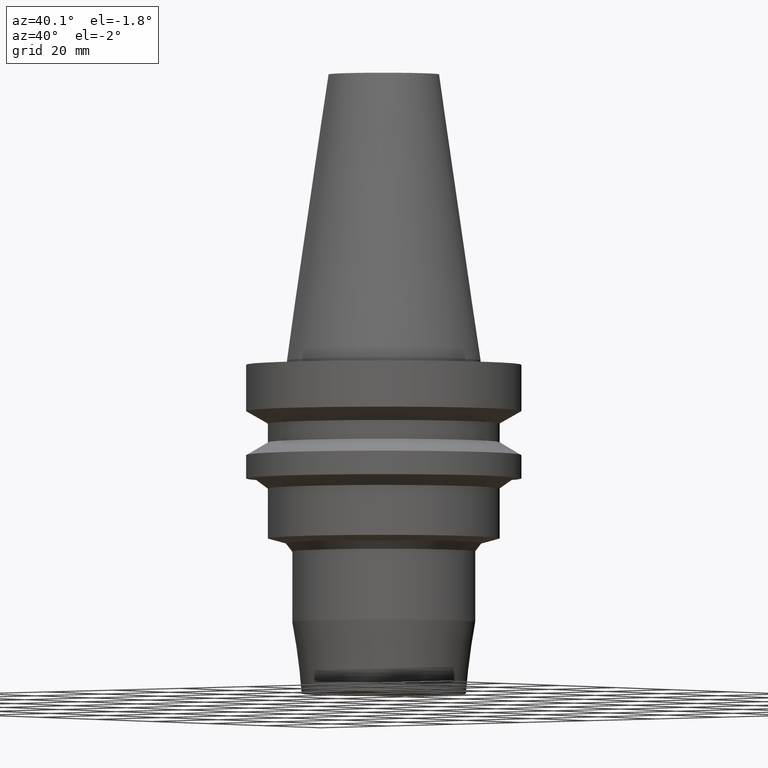
[diagram: clean part render]
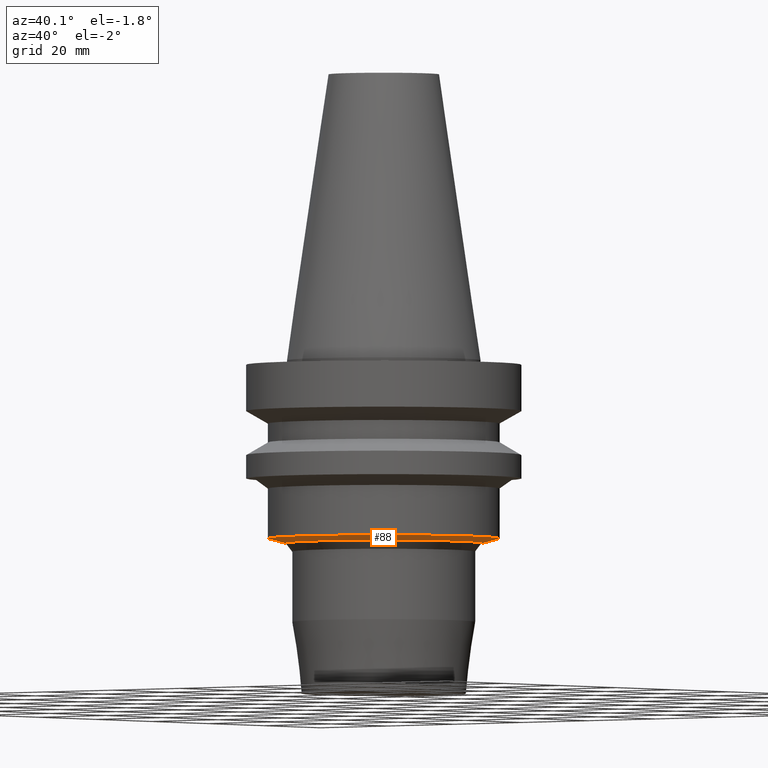
[diagram: same view with one face highlighted and labeled with its STEP entity id]
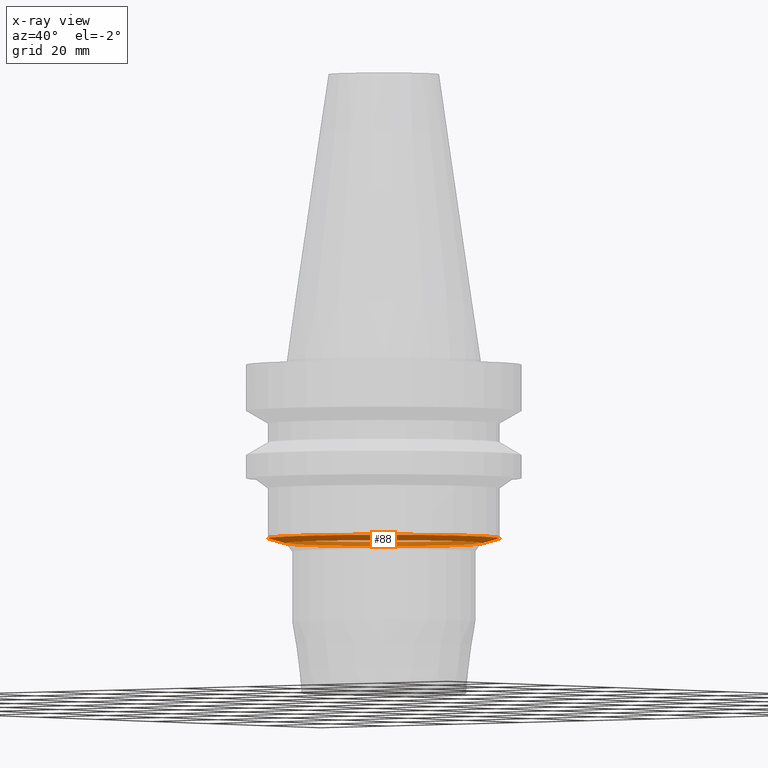
[diagram: x-ray of the same camera — body ghosted, the highlighted face saturated]
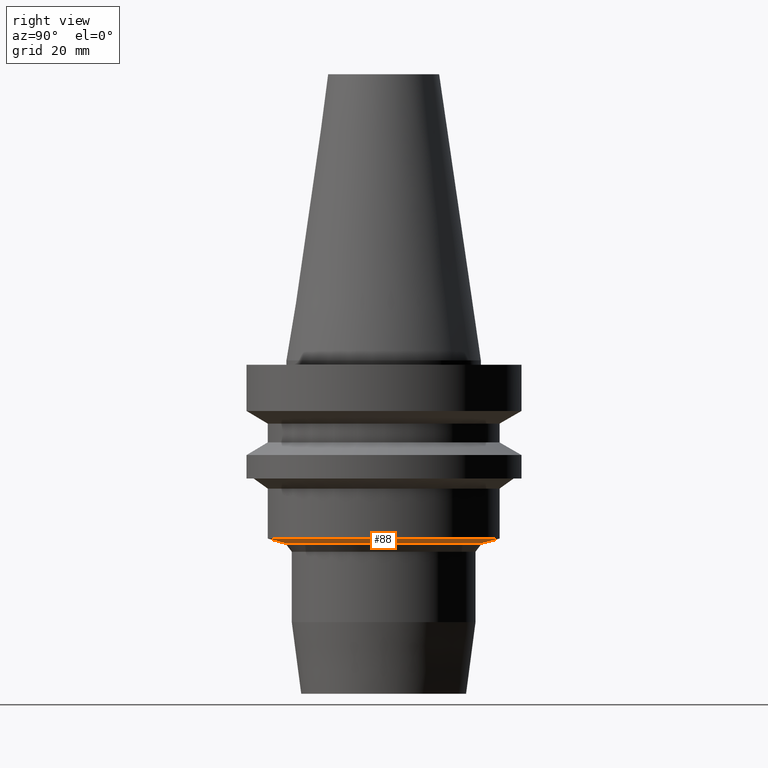
[diagram: same view with one face highlighted and labeled with its STEP entity id]
A machine part, auxiliary view. The second image highlights one B-rep face of the part: STEP entity #88.
The next image is the same camera in x-ray: the body ghosted, the highlighted face saturated — about 37% of this face is hidden behind the body in this view.
A second angle (right view) of the same face is appended — the face is thin or edge-on in the first view.
In plain terms, the highlighted conical surface has half-angle 75 deg.
Its self-contained STEP definition (entity closure, byte-faithful):
#88=ADVANCED_FACE('Unnamed[1]',(#206,#207),#208,.T.);
#121=EDGE_CURVE('Unnamed[1]',#260,#260,#261,.T.);
#123=EDGE_CURVE('Unnamed[1]',#263,#263,#264,.T.);
#206=FACE_BOUND('',#358,.T.);
#207=FACE_BOUND('',#359,.T.);
#208=CONICAL_SURFACE('',#360,24.4911809548945,1.30899693899579);
#260=VERTEX_POINT('',#425);
#261=CIRCLE('',#426,26.5);
#263=VERTEX_POINT('',#429);
#264=CIRCLE('',#430,22.482361909789);
#358=EDGE_LOOP('',(#520));
#359=EDGE_LOOP('',(#521));
#360=AXIS2_PLACEMENT_3D('',#522,#523,#524);
#425=CARTESIAN_POINT('',(2.49377128932141E-015,26.5,-40.7263758180345));
#426=AXIS2_PLACEMENT_3D('',#582,#583,#584);
#429=CARTESIAN_POINT('',(2.55968930438875E-015,22.482361909789,-41.8028986997869));
#430=AXIS2_PLACEMENT_3D('',#585,#586,#587);
#520=ORIENTED_EDGE('',*,*,#123,.F.);
#521=ORIENTED_EDGE('',*,*,#121,.T.);
#522=CARTESIAN_POINT('',(2.52673029685508E-015,5.03196681106894E-015,-41.2646372589107));
#523=DIRECTION('',(-6.12323399573677E-017,6.70009952006086E-016,1.0));
#524=DIRECTION('',(3.61991244252889E-032,1.0,-6.70009952006086E-016));
#582=CARTESIAN_POINT('',(2.49377128932141E-015,5.39260733323711E-015,-40.7263758180345));
#583=DIRECTION('',(6.12323399573677E-017,-6.70009952006018E-016,-1.0));
#584=DIRECTION('',(3.61991244252817E-032,1.0,-6.70009952006018E-016));
#585=CARTESIAN_POINT('',(2.55968930438875E-015,4.67132628890078E-015,-41.8028986997869));
#586=DIRECTION('',(6.12323399573677E-017,-6.70009952006023E-016,-1.0));
#587=DIRECTION('',(3.61991244252813E-032,1.0,-6.70009952006023E-016));